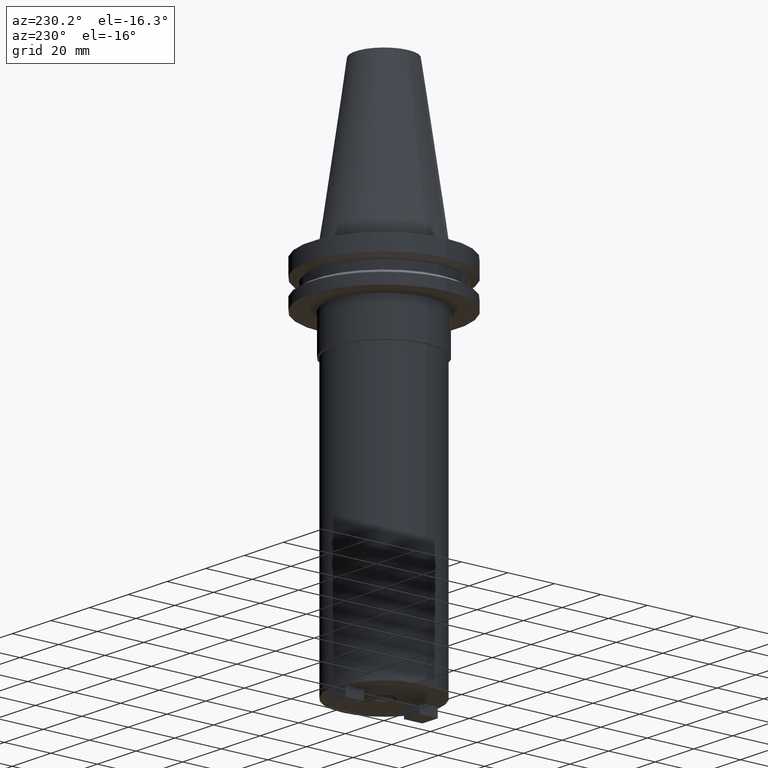
[diagram: clean part render]
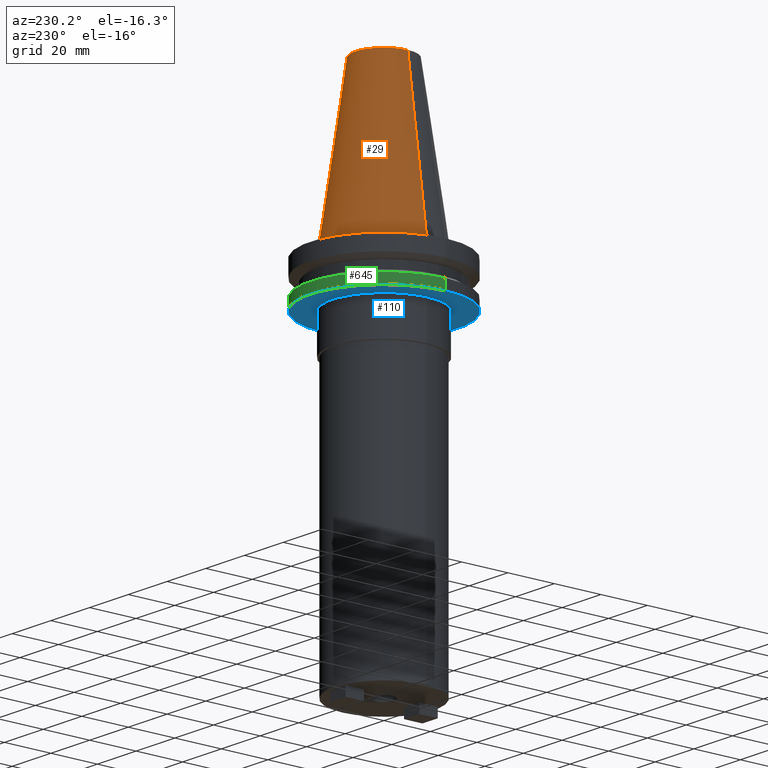
[diagram: same view with three faces highlighted in distinct colors, each labeled with its STEP entity id]
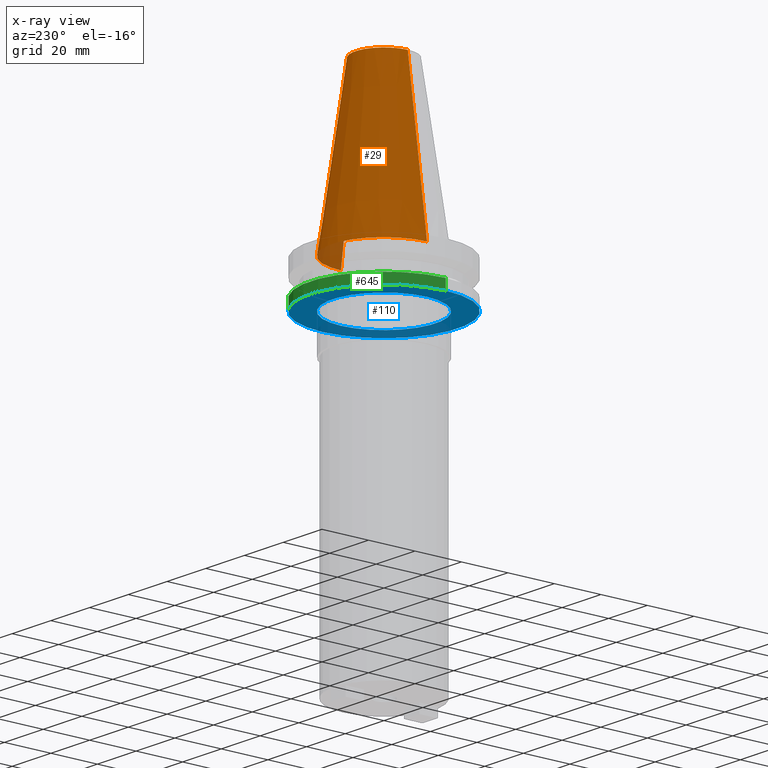
[diagram: x-ray of the same camera — body ghosted, the three highlighted faces saturated]
A machine part, auxiliary view with three faces highlighted in distinct colors.
The next image is the same camera in x-ray (body ghosted, the three faces saturated) — at least one of them is partly hidden behind the body in this view.
Their STEP definitions:

[orange] entity #29 — the highlighted conical surface has half-angle 8.297 deg.
#2 = LINE ( 'NONE', #514, #229 ) ;
#9 = CARTESIAN_POINT ( 'NONE',  ( 0.000000000000000000, 0.000000000000000000, 0.000000000000000000 ) ) ;
#29 = ADVANCED_FACE ( 'NONE', ( #636 ), #314, .T. ) ;
#55 = CARTESIAN_POINT ( 'NONE',  ( 22.22500000000000142, 2.721777511104992849E-15, 0.000000000000000000 ) ) ;
#80 = EDGE_LOOP ( 'NONE', ( #523, #772, #240, #939 ) ) ;
#135 = DIRECTION ( 'NONE',  ( 1.000000000000000000, 0.000000000000000000, 0.000000000000000000 ) ) ;
#153 = CIRCLE ( 'NONE', #587, 12.27178102086201150 ) ;
#229 = VECTOR ( 'NONE', #773, 999.9999999999998863 ) ;
#240 = ORIENTED_EDGE ( 'NONE', *, *, #1068, .T. ) ;
#276 = DIRECTION ( 'NONE',  ( -1.000000000000000000, 0.000000000000000000, 0.000000000000000000 ) ) ;
#279 = DIRECTION ( 'NONE',  ( -0.000000000000000000, -0.000000000000000000, 1.000000000000000000 ) ) ;
#281 = AXIS2_PLACEMENT_3D ( 'NONE', #466, #538, #276 ) ;
#295 = DIRECTION ( 'NONE',  ( -0.1443082272672999711, 0.000000000000000000, -0.9895327864921755756 ) ) ;
#314 = CONICAL_SURFACE ( 'NONE', #281, 22.22500000000000142, 0.1448138465474119174 ) ;
#454 = VERTEX_POINT ( 'NONE', #885 ) ;
#464 = CIRCLE ( 'NONE', #589, 22.22500000000000142 ) ;
#466 = CARTESIAN_POINT ( 'NONE',  ( 0.000000000000000000, 0.000000000000000000, 0.000000000000000000 ) ) ;
#514 = CARTESIAN_POINT ( 'NONE',  ( 22.22500000000000142, 2.721777511104992849E-15, 0.000000000000000000 ) ) ;
#523 = ORIENTED_EDGE ( 'NONE', *, *, #774, .F. ) ;
#538 = DIRECTION ( 'NONE',  ( 0.000000000000000000, 0.000000000000000000, -1.000000000000000000 ) ) ;
#570 = EDGE_CURVE ( 'NONE', #454, #933, #2, .T. ) ;
#582 = CARTESIAN_POINT ( 'NONE',  ( -22.22500000000000142, 0.000000000000000000, 0.000000000000000000 ) ) ;
#587 = AXIS2_PLACEMENT_3D ( 'NONE', #876, #279, #135 ) ;
#589 = AXIS2_PLACEMENT_3D ( 'NONE', #9, #1019, #932 ) ;
#636 = FACE_OUTER_BOUND ( 'NONE', #80, .T. ) ;
#726 = EDGE_CURVE ( 'NONE', #856, #911, #1034, .T. ) ;
#772 = ORIENTED_EDGE ( 'NONE', *, *, #570, .T. ) ;
#773 = DIRECTION ( 'NONE',  ( 0.1443082272672999711, 1.767266086135276757E-17, -0.9895327864921755756 ) ) ;
#774 = EDGE_CURVE ( 'NONE', #454, #856, #153, .T. ) ;
#830 = CARTESIAN_POINT ( 'NONE',  ( -12.27178102086201150, 0.000000000000000000, 68.25000000000000000 ) ) ;
#856 = VERTEX_POINT ( 'NONE', #830 ) ;
#876 = CARTESIAN_POINT ( 'NONE',  ( 0.000000000000000000, 0.000000000000000000, 68.25000000000000000 ) ) ;
#885 = CARTESIAN_POINT ( 'NONE',  ( 12.27178102086201150, 2.112318622904291439E-15, 68.25000000000000000 ) ) ;
#894 = CARTESIAN_POINT ( 'NONE',  ( -22.22500000000000142, 0.000000000000000000, 0.000000000000000000 ) ) ;
#911 = VERTEX_POINT ( 'NONE', #582 ) ;
#932 = DIRECTION ( 'NONE',  ( 1.000000000000000000, 0.000000000000000000, 0.000000000000000000 ) ) ;
#933 = VERTEX_POINT ( 'NONE', #55 ) ;
#939 = ORIENTED_EDGE ( 'NONE', *, *, #726, .F. ) ;
#979 = VECTOR ( 'NONE', #295, 999.9999999999998863 ) ;
#1019 = DIRECTION ( 'NONE',  ( -0.000000000000000000, -0.000000000000000000, 1.000000000000000000 ) ) ;
#1034 = LINE ( 'NONE', #894, #979 ) ;
#1068 = EDGE_CURVE ( 'NONE', #933, #911, #464, .T. ) ;

[blue] entity #110 — the highlighted planar face has unit normal (0, -0, 1).
#12 = DIRECTION ( 'NONE',  ( -0.000000000000000000, -0.000000000000000000, 1.000000000000000000 ) ) ;
#27 = AXIS2_PLACEMENT_3D ( 'NONE', #764, #599, #1087 ) ;
#33 = DIRECTION ( 'NONE',  ( 1.000000000000000000, 0.000000000000000000, 0.000000000000000000 ) ) ;
#77 = CARTESIAN_POINT ( 'NONE',  ( -22.22500000000000142, 2.721777511104992849E-15, -19.04999999999999716 ) ) ;
#79 = ORIENTED_EDGE ( 'NONE', *, *, #410, .F. ) ;
#84 = DIRECTION ( 'NONE',  ( -0.000000000000000000, -0.000000000000000000, 1.000000000000000000 ) ) ;
#110 = ADVANCED_FACE ( 'NONE', ( #366, #116 ), #546, .F. ) ;
#116 = FACE_BOUND ( 'NONE', #978, .T. ) ;
#126 = EDGE_CURVE ( 'NONE', #384, #214, #620, .T. ) ;
#167 = CARTESIAN_POINT ( 'NONE',  ( 0.000000000000000000, 0.000000000000000000, -19.04999999999999716 ) ) ;
#214 = VERTEX_POINT ( 'NONE', #396 ) ;
#266 = ORIENTED_EDGE ( 'NONE', *, *, #381, .T. ) ;
#302 = CIRCLE ( 'NONE', #859, 22.22500000000000142 ) ;
#366 = FACE_OUTER_BOUND ( 'NONE', #612, .T. ) ;
#377 = CARTESIAN_POINT ( 'NONE',  ( 0.000000000000000000, 0.000000000000000000, -19.04999999999999716 ) ) ;
#381 = EDGE_CURVE ( 'NONE', #524, #392, #512, .T. ) ;
#383 = DIRECTION ( 'NONE',  ( 1.000000000000000000, 0.000000000000000000, 0.000000000000000000 ) ) ;
#384 = VERTEX_POINT ( 'NONE', #505 ) ;
#392 = VERTEX_POINT ( 'NONE', #77 ) ;
#396 = CARTESIAN_POINT ( 'NONE',  ( -31.74999999999999289, 3.888253587292845687E-15, -19.04999999999999716 ) ) ;
#410 = EDGE_CURVE ( 'NONE', #214, #384, #604, .T. ) ;
#421 = CARTESIAN_POINT ( 'NONE',  ( 0.000000000000000000, 0.000000000000000000, -19.04999999999999716 ) ) ;
#459 = CARTESIAN_POINT ( 'NONE',  ( 0.000000000000000000, 31.74999999999999289, -19.04999999999999716 ) ) ;
#505 = CARTESIAN_POINT ( 'NONE',  ( 31.74999999999999289, 0.000000000000000000, -19.04999999999999716 ) ) ;
#512 = CIRCLE ( 'NONE', #27, 22.22500000000000142 ) ;
#524 = VERTEX_POINT ( 'NONE', #896 ) ;
#543 = AXIS2_PLACEMENT_3D ( 'NONE', #377, #717, #383 ) ;
#546 = PLANE ( 'NONE',  #937 ) ;
#559 = ORIENTED_EDGE ( 'NONE', *, *, #593, .T. ) ;
#593 = EDGE_CURVE ( 'NONE', #392, #524, #302, .T. ) ;
#599 = DIRECTION ( 'NONE',  ( -0.000000000000000000, -0.000000000000000000, 1.000000000000000000 ) ) ;
#604 = CIRCLE ( 'NONE', #654, 31.74999999999999289 ) ;
#612 = EDGE_LOOP ( 'NONE', ( #966, #79 ) ) ;
#620 = CIRCLE ( 'NONE', #543, 31.74999999999999289 ) ;
#647 = DIRECTION ( 'NONE',  ( 1.000000000000000000, 0.000000000000000000, 0.000000000000000000 ) ) ;
#654 = AXIS2_PLACEMENT_3D ( 'NONE', #167, #84, #647 ) ;
#717 = DIRECTION ( 'NONE',  ( -0.000000000000000000, -0.000000000000000000, 1.000000000000000000 ) ) ;
#757 = DIRECTION ( 'NONE',  ( 1.000000000000000000, 0.000000000000000000, 0.000000000000000000 ) ) ;
#764 = CARTESIAN_POINT ( 'NONE',  ( 0.000000000000000000, 0.000000000000000000, -19.04999999999999716 ) ) ;
#791 = DIRECTION ( 'NONE',  ( 0.000000000000000000, -0.000000000000000000, 1.000000000000000000 ) ) ;
#859 = AXIS2_PLACEMENT_3D ( 'NONE', #421, #12, #757 ) ;
#896 = CARTESIAN_POINT ( 'NONE',  ( 22.22500000000000142, 0.000000000000000000, -19.04999999999999716 ) ) ;
#937 = AXIS2_PLACEMENT_3D ( 'NONE', #459, #791, #33 ) ;
#966 = ORIENTED_EDGE ( 'NONE', *, *, #126, .F. ) ;
#978 = EDGE_LOOP ( 'NONE', ( #266, #559 ) ) ;
#1087 = DIRECTION ( 'NONE',  ( 1.000000000000000000, 0.000000000000000000, 0.000000000000000000 ) ) ;

[green] entity #645 — the highlighted cylindrical surface (partial cylindrical patch) has radius 31.75 mm, axis along (-0, -0, 1).
#21 = DIRECTION ( 'NONE',  ( -0.000000000000000000, -0.000000000000000000, 1.000000000000000000 ) ) ;
#101 = VECTOR ( 'NONE', #21, 1000.000000000000000 ) ;
#106 = CARTESIAN_POINT ( 'NONE',  ( 0.000000000000000000, 0.000000000000000000, -14.65472339340266572 ) ) ;
#126 = EDGE_CURVE ( 'NONE', #384, #214, #620, .T. ) ;
#150 = LINE ( 'NONE', #486, #494 ) ;
#178 = EDGE_LOOP ( 'NONE', ( #718, #403, #801, #558 ) ) ;
#191 = DIRECTION ( 'NONE',  ( -0.000000000000000000, -0.000000000000000000, 1.000000000000000000 ) ) ;
#214 = VERTEX_POINT ( 'NONE', #396 ) ;
#254 = CYLINDRICAL_SURFACE ( 'NONE', #908, 31.75000000000000000 ) ;
#261 = DIRECTION ( 'NONE',  ( 1.000000000000000000, 0.000000000000000000, 0.000000000000000000 ) ) ;
#277 = EDGE_CURVE ( 'NONE', #214, #935, #150, .T. ) ;
#320 = CIRCLE ( 'NONE', #925, 31.75000000000000000 ) ;
#377 = CARTESIAN_POINT ( 'NONE',  ( 0.000000000000000000, 0.000000000000000000, -19.04999999999999716 ) ) ;
#383 = DIRECTION ( 'NONE',  ( 1.000000000000000000, 0.000000000000000000, 0.000000000000000000 ) ) ;
#384 = VERTEX_POINT ( 'NONE', #505 ) ;
#396 = CARTESIAN_POINT ( 'NONE',  ( -31.74999999999999289, 3.888253587292845687E-15, -19.04999999999999716 ) ) ;
#403 = ORIENTED_EDGE ( 'NONE', *, *, #277, .T. ) ;
#430 = LINE ( 'NONE', #862, #101 ) ;
#486 = CARTESIAN_POINT ( 'NONE',  ( -31.75000000000000000, 3.888253587292846476E-15, 68.25000000000000000 ) ) ;
#494 = VECTOR ( 'NONE', #811, 1000.000000000000000 ) ;
#505 = CARTESIAN_POINT ( 'NONE',  ( 31.74999999999999289, 0.000000000000000000, -19.04999999999999716 ) ) ;
#536 = DIRECTION ( 'NONE',  ( 1.000000000000000000, 0.000000000000000000, 0.000000000000000000 ) ) ;
#543 = AXIS2_PLACEMENT_3D ( 'NONE', #377, #717, #383 ) ;
#558 = ORIENTED_EDGE ( 'NONE', *, *, #674, .F. ) ;
#620 = CIRCLE ( 'NONE', #543, 31.74999999999999289 ) ;
#645 = ADVANCED_FACE ( 'NONE', ( #917 ), #254, .T. ) ;
#672 = CARTESIAN_POINT ( 'NONE',  ( -31.75000000000000000, 3.888253587292846476E-15, -14.65472339340266572 ) ) ;
#674 = EDGE_CURVE ( 'NONE', #384, #866, #430, .T. ) ;
#695 = CARTESIAN_POINT ( 'NONE',  ( 0.000000000000000000, 0.000000000000000000, 68.25000000000000000 ) ) ;
#717 = DIRECTION ( 'NONE',  ( -0.000000000000000000, -0.000000000000000000, 1.000000000000000000 ) ) ;
#718 = ORIENTED_EDGE ( 'NONE', *, *, #126, .T. ) ;
#753 = CARTESIAN_POINT ( 'NONE',  ( 31.75000000000000000, 0.000000000000000000, -14.65472339340266572 ) ) ;
#779 = EDGE_CURVE ( 'NONE', #866, #935, #320, .T. ) ;
#801 = ORIENTED_EDGE ( 'NONE', *, *, #779, .F. ) ;
#811 = DIRECTION ( 'NONE',  ( -0.000000000000000000, -0.000000000000000000, 1.000000000000000000 ) ) ;
#838 = DIRECTION ( 'NONE',  ( -0.000000000000000000, -0.000000000000000000, 1.000000000000000000 ) ) ;
#862 = CARTESIAN_POINT ( 'NONE',  ( 31.75000000000000000, 0.000000000000000000, 68.25000000000000000 ) ) ;
#866 = VERTEX_POINT ( 'NONE', #753 ) ;
#908 = AXIS2_PLACEMENT_3D ( 'NONE', #695, #838, #261 ) ;
#917 = FACE_OUTER_BOUND ( 'NONE', #178, .T. ) ;
#925 = AXIS2_PLACEMENT_3D ( 'NONE', #106, #191, #536 ) ;
#935 = VERTEX_POINT ( 'NONE', #672 ) ;